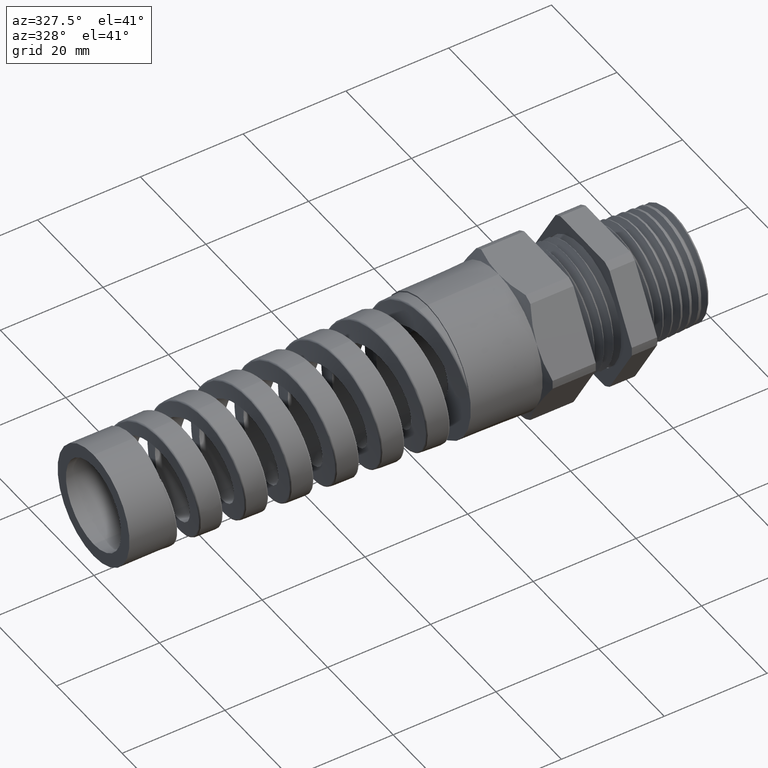
[diagram: clean part render]
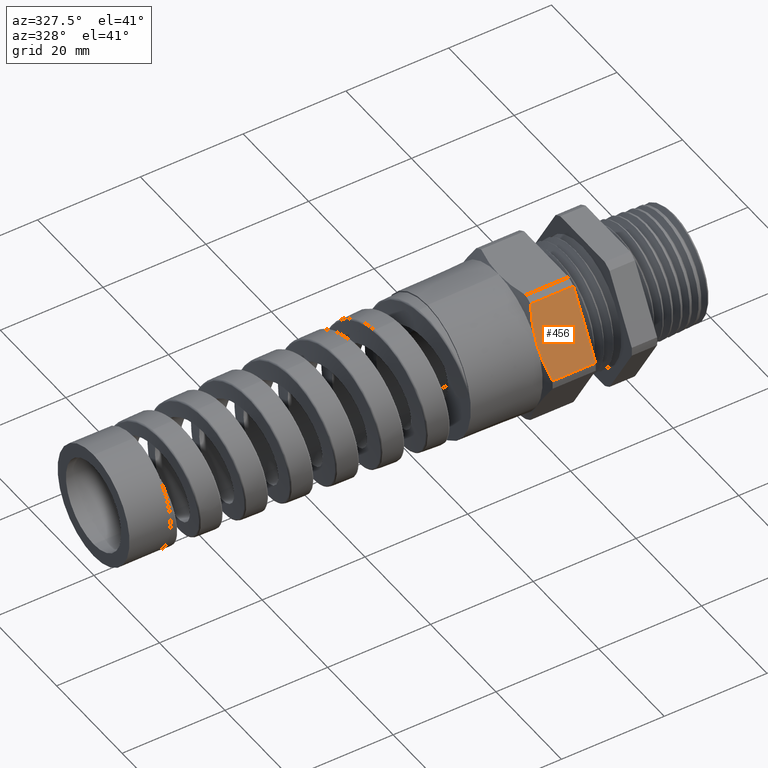
[diagram: same view with one face highlighted and labeled with its STEP entity id]
A machine part, auxiliary view. The second image highlights one B-rep face of the part: STEP entity #456.
In plain terms, the highlighted planar face has unit normal (0, -0.866, 0.5).
Its self-contained STEP definition (entity closure, byte-faithful):
#365 = EDGE_CURVE ( 'NONE', #387, #675, #2220, .T. ) ;
#387 = VERTEX_POINT ( 'NONE', #2232 ) ;
#391 = VERTEX_POINT ( 'NONE', #2284 ) ;
#394 = EDGE_CURVE ( 'NONE', #391, #395, #2282, .T. ) ;
#395 = VERTEX_POINT ( 'NONE', #2278 ) ;
#401 = EDGE_LOOP ( 'NONE', ( #457, #458, #460, #462, #463 ) ) ;
#456 = ADVANCED_FACE ( 'NONE', ( #2386 ), #2383, .T. ) ;
#457 = ORIENTED_EDGE ( 'NONE', *, *, #394, .F. ) ;
#458 = ORIENTED_EDGE ( 'NONE', *, *, #459, .T. ) ;
#459 = EDGE_CURVE ( 'NONE', #391, #1555, #2433, .T. ) ;
#460 = ORIENTED_EDGE ( 'NONE', *, *, #461, .T. ) ;
#461 = EDGE_CURVE ( 'NONE', #1555, #387, #2425, .T. ) ;
#462 = ORIENTED_EDGE ( 'NONE', *, *, #365, .T. ) ;
#463 = ORIENTED_EDGE ( 'NONE', *, *, #464, .T. ) ;
#464 = EDGE_CURVE ( 'NONE', #675, #395, #2411, .T. ) ;
#675 = VERTEX_POINT ( 'NONE', #2808 ) ;
#1555 = VERTEX_POINT ( 'NONE', #12812 ) ;
#2217 = DIRECTION ( 'NONE',  ( 1.000000000000000000, 0.0000000000000000000, 0.0000000000000000000 ) ) ;
#2218 = VECTOR ( 'NONE', #2217, 39.37007874015748100 ) ;
#2219 = CARTESIAN_POINT ( 'NONE',  ( -2.533243884661831900, -0.5926543782626886300, 0.03349250552087959500 ) ) ;
#2220 = LINE ( 'NONE', #2219, #2218 ) ;
#2232 = CARTESIAN_POINT ( 'NONE',  ( -0.8007805228795398200, -0.5926543782626886300, 0.03349250552087960900 ) ) ;
#2278 = CARTESIAN_POINT ( 'NONE',  ( -0.4708333333333333300, -0.3253325497488163700, 0.4965074944791205700 ) ) ;
#2279 = DIRECTION ( 'NONE',  ( 1.000000000000000000, 0.0000000000000000000, 0.0000000000000000000 ) ) ;
#2280 = VECTOR ( 'NONE', #2279, 39.37007874015748100 ) ;
#2281 = CARTESIAN_POINT ( 'NONE',  ( -2.533243884661831900, -0.3253325497488163700, 0.4965074944791205700 ) ) ;
#2282 = LINE ( 'NONE', #2281, #2280 ) ;
#2284 = CARTESIAN_POINT ( 'NONE',  ( -0.8007805228795399400, -0.3253325497488163700, 0.4965074944791205700 ) ) ;
#2383 = PLANE ( 'NONE',  #2437 ) ;
#2386 = FACE_OUTER_BOUND ( 'NONE', #401, .T. ) ;
#2411 = LINE ( 'NONE', #2426, #2424 ) ;
#2413 = CARTESIAN_POINT ( 'NONE',  ( -0.8007805228795398200, -0.5926543782626886300, 0.03349250552087960900 ) ) ;
#2414 = CARTESIAN_POINT ( 'NONE',  ( -0.8121583111907519900, -0.5707743463978557400, 0.07138983238199590700 ) ) ;
#2415 = CARTESIAN_POINT ( 'NONE',  ( -0.8214003591281861000, -0.5487193861851584800, 0.1095901440292977500 ) ) ;
#2416 = CARTESIAN_POINT ( 'NONE',  ( -0.8309221305962479800, -0.5152813705712207000, 0.1675064859769193100 ) ) ;
#2417 = CARTESIAN_POINT ( 'NONE',  ( -0.8333721404368325000, -0.5040760730113617000, 0.1869146306645229300 ) ) ;
#2418 = CARTESIAN_POINT ( 'NONE',  ( -0.8366665420851497900, -0.4815339693462991600, 0.2259586995218958200 ) ) ;
#2419 = CARTESIAN_POINT ( 'NONE',  ( -0.8374999999999999100, -0.4702241497211294100, 0.2455478817371293000 ) ) ;
#2420 = CARTESIAN_POINT ( 'NONE',  ( -0.8375000000000000200, -0.4589934640057524700, 0.2650000000000002400 ) ) ;
#2423 = DIRECTION ( 'NONE',  ( 0.0000000000000000000, 0.5000000000000003300, 0.8660254037844383700 ) ) ;
#2424 = VECTOR ( 'NONE', #2423, 39.37007874015748100 ) ;
#2425 = B_SPLINE_CURVE_WITH_KNOTS ( 'NONE', 3,
 ( #2420, #2419, #2418, #2417, #2416, #2415, #2414, #2413 ),
 .UNSPECIFIED., .F., .F.,
 ( 4, 2, 2, 4 ),
 ( 0.006851532669467760300, 0.008552772946843100600, 0.01025401322421844200, 0.01365649377896912400 ),
 .UNSPECIFIED. ) ;
#2426 = CARTESIAN_POINT ( 'NONE',  ( -0.4708333333333333300, -0.3423934640057523200, 0.4669571241625314900 ) ) ;
#2427 = CARTESIAN_POINT ( 'NONE',  ( -0.8375000000000000200, -0.4589934640057524700, 0.2650000000000002400 ) ) ;
#2428 = CARTESIAN_POINT ( 'NONE',  ( -0.8375000000000000200, -0.4363791516153982000, 0.3041691380383281200 ) ) ;
#2429 = CARTESIAN_POINT ( 'NONE',  ( -0.8341133144435343100, -0.4139516039507624100, 0.3430147900826498500 ) ) ;
#2430 = CARTESIAN_POINT ( 'NONE',  ( -0.8214552305450429900, -0.3694210314480134700, 0.4201440041475404400 ) ) ;
#2431 = CARTESIAN_POINT ( 'NONE',  ( -0.8122123161882932600, -0.3473164358104832700, 0.4584302868725079200 ) ) ;
#2432 = CARTESIAN_POINT ( 'NONE',  ( -0.8007805228795399400, -0.3253325497488163700, 0.4965074944791205700 ) ) ;
#2433 = B_SPLINE_CURVE_WITH_KNOTS ( 'NONE', 3,
 ( #2432, #2431, #2430, #2429, #2428, #2427 ),
 .UNSPECIFIED., .F., .F.,
 ( 4, 2, 4 ),
 ( 2.361309237132949400E-007, 0.003425884400195736500, 0.006851532669467760300 ),
 .UNSPECIFIED. ) ;
#2434 = DIRECTION ( 'NONE',  ( 0.0000000000000000000, -0.5000000000000003300, -0.8660254037844383700 ) ) ;
#2435 = DIRECTION ( 'NONE',  ( 0.0000000000000000000, -0.8660254037844384900, 0.5000000000000004400 ) ) ;
#2436 = CARTESIAN_POINT ( 'NONE',  ( -2.533243884661831900, -0.3253325497488163700, 0.4965074944791205700 ) ) ;
#2437 = AXIS2_PLACEMENT_3D ( 'NONE', #2436, #2435, #2434 ) ;
#2808 = CARTESIAN_POINT ( 'NONE',  ( -0.4708333333333333300, -0.5926543782626886300, 0.03349250552087959500 ) ) ;
#12812 = CARTESIAN_POINT ( 'NONE',  ( -0.8375000000000000200, -0.4589934640057524700, 0.2650000000000002400 ) ) ;